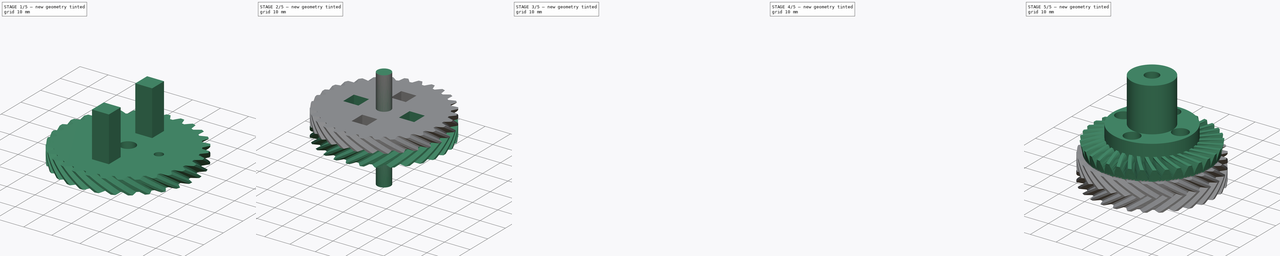
[diagram: build sequence overview — one tinted view per stage of 5, left to right]
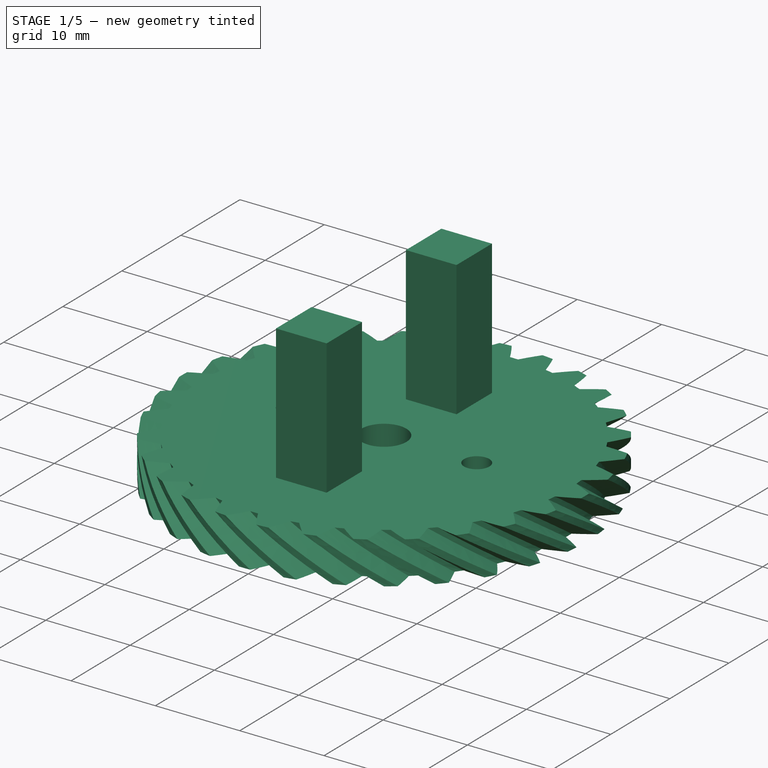
[diagram: stage 1 of 5 — iso view after this stage's code; geometry added in this stage tinted green]
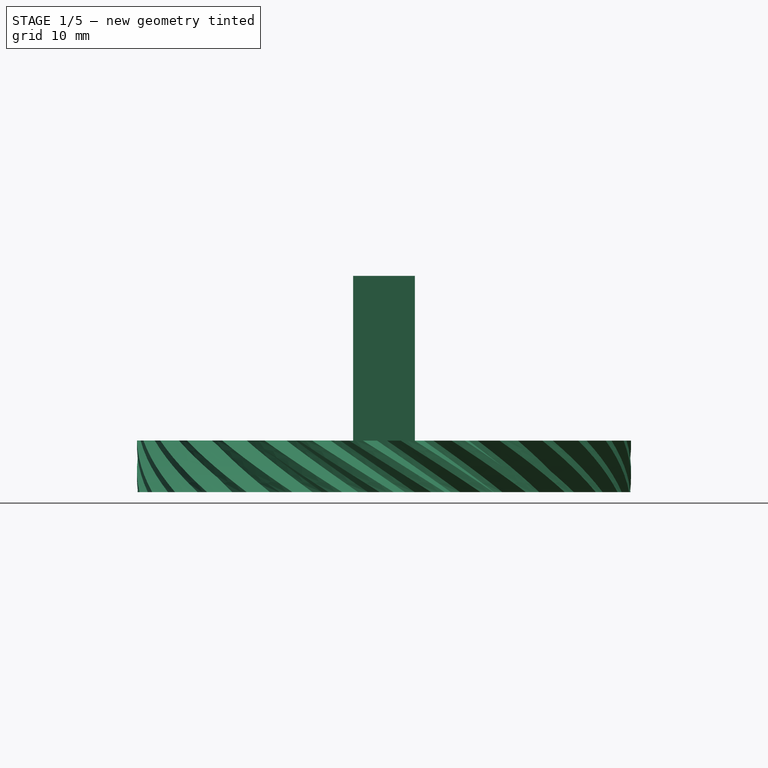
[diagram: stage 1 of 5 — front view after this stage's code; geometry added in this stage tinted green]
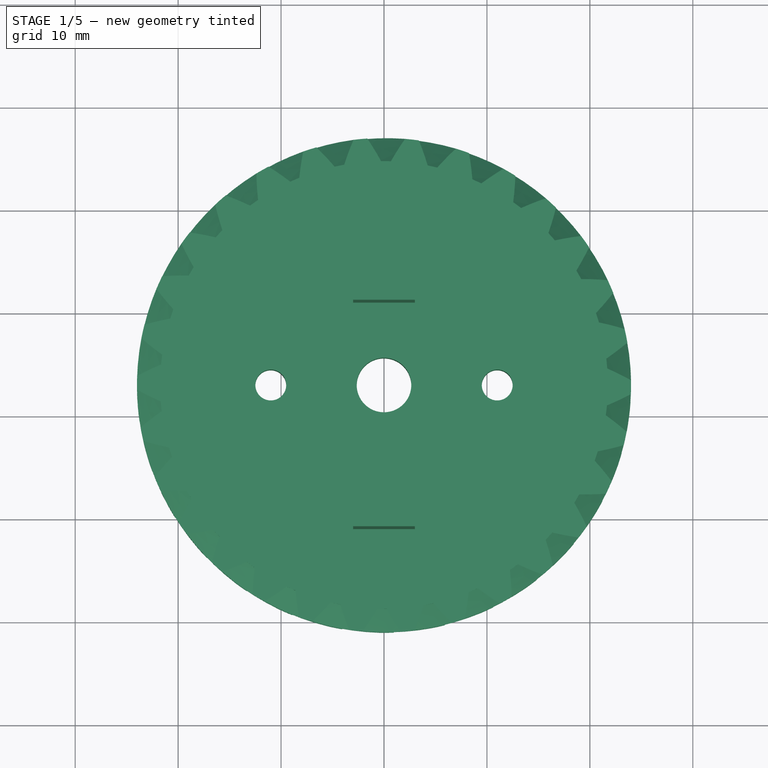
[diagram: stage 1 of 5 — top view after this stage's code; geometry added in this stage tinted green]
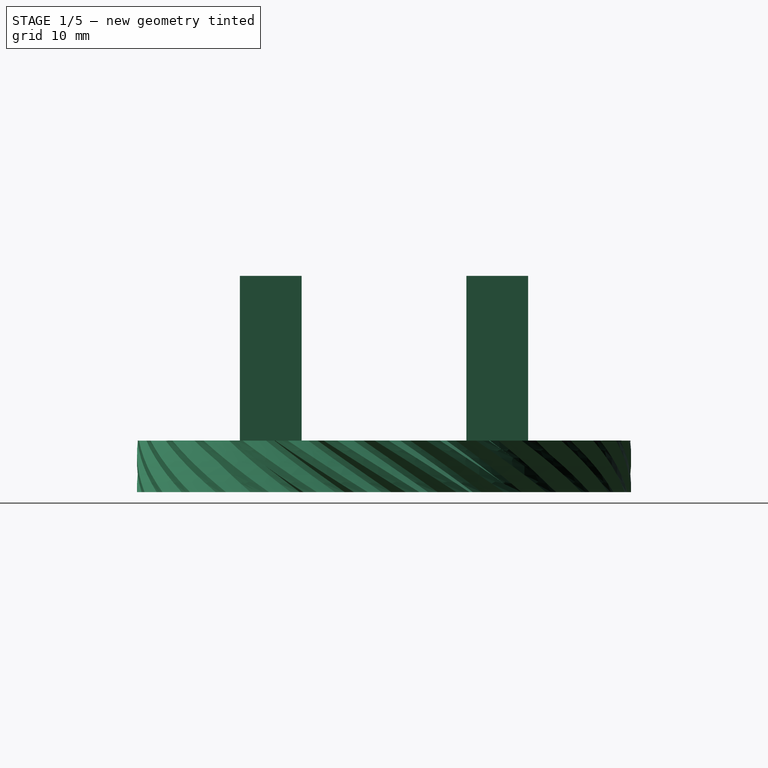
[diagram: stage 1 of 5 — right view after this stage's code; geometry added in this stage tinted green]
FCSTD DOCUMENT  (FreeCAD 0.19R24291 (Git))
Label: bazovina-prevod-A+B_middle-gear_012
License: All rights reserved
LicenseURL: http://en.wikipedia.org/wiki/All_rights_reserved
objects: Part::Cylinder×28, Part::Cut×12, Part::Compound×8, Part::Box×4, Part::FeaturePython×3, Sketcher::SketchObject×1, PartDesign::Revolution×1, PartDesign::Body×1, Part::Common×1
note: 60 computed .brp shape members not serialized (recipe doc carries the construction recipe); baked Part::Feature solids carry a one-line shape summary decoded from their .brp

FEATURE [Part::FeaturePython] wormgear026  # WARN: FeaturePython — macro-defined, semantics opaque (R4)
  AttacherType = Attacher::AttachEngine3D
  Placement = pos=(0,83,37) rot=(0,0,1;0.191986rad)
  beta = 33.1113
  clearance = 0.25
  diameter = 46
  head = 0
  height = 5
  module = 1
  pressure_angle = 20
  reverse_pitch = true
  teeth = 30
  version = 0.0.3
FEATURE [Part::Cylinder] Cylinder587  label="Válec587"
  Angle = 360
  AttacherType = Attacher::AttachEngine3D
  Height = 30
  Placement = pos=(-11,83,15) rot=(0,0,1;0rad)
  Radius = 1.5
FEATURE [Part::Cylinder] Cylinder588  label="Válec588"
  Angle = 360
  AttacherType = Attacher::AttachEngine3D
  Height = 30
  Placement = pos=(11,83,15) rot=(0,0,1;0rad)
  Radius = 1.5
FEATURE [Part::Cylinder] Cylinder589  label="Válec589"
  Angle = 360
  AttacherType = Attacher::AttachEngine3D
  Height = 30
  Placement = pos=(0,72,15) rot=(0,0,1;0rad)
  Radius = 1.5
FEATURE [Part::Cylinder] Cylinder590  label="Válec590"
  Angle = 360
  AttacherType = Attacher::AttachEngine3D
  Height = 30
  Placement = pos=(0,94,15) rot=(0,0,1;0rad)
  Radius = 1.5
FEATURE [Part::Compound] Compound361
  Links = -> [Cylinder587,Cylinder588,Cylinder589,Cylinder590]
FEATURE [Part::Cylinder] Cylinder596  label="Válec596"
  Angle = 360
  AttacherType = Attacher::AttachEngine3D
  Height = 40
  Placement = pos=(0,83,15) rot=(0,0,1;0rad)
  Radius = 2.65
FEATURE [Part::Cut] Cut
  Base = -> wormgear026
  Tool = -> Compound361
FEATURE [Part::Box] Box002  label="Krychle002"
  AttacherType = Attacher::AttachEngine3D
  Height = 20
  Length = 6
  Placement = pos=(-3,69,38) rot=(0,0,1;0rad)
  Width = 6
FEATURE [Part::Box] Box003  label="Krychle003"
  AttacherType = Attacher::AttachEngine3D
  Height = 20
  Length = 6
  Placement = pos=(-3,91,38) rot=(0,0,1;0rad)
  Width = 6
FEATURE [Part::Cut] Cut228
  Base = -> Cut
  Tool = -> Cylinder596
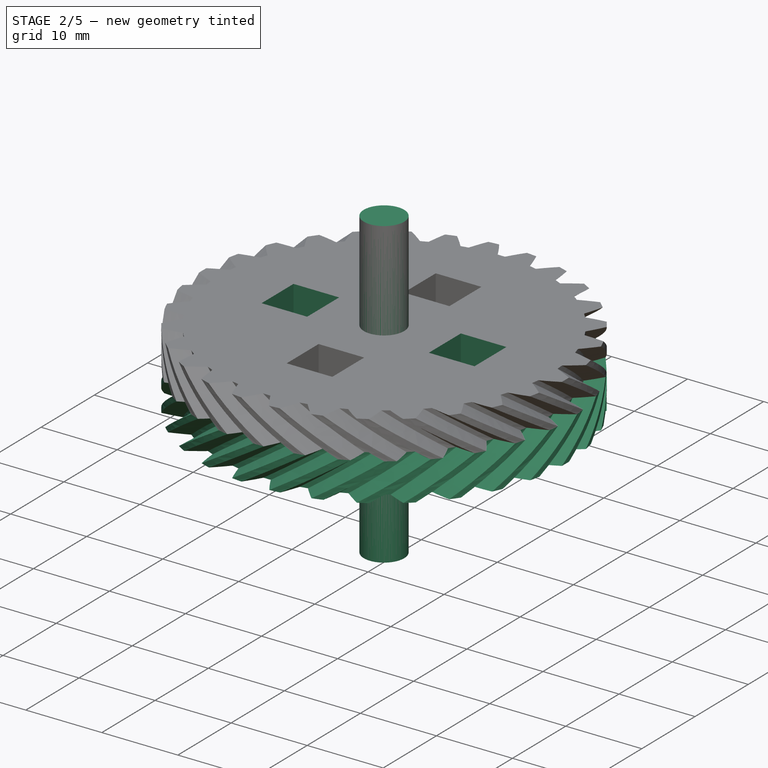
[diagram: stage 2 of 5 — iso view after this stage's code; geometry added in this stage tinted green]
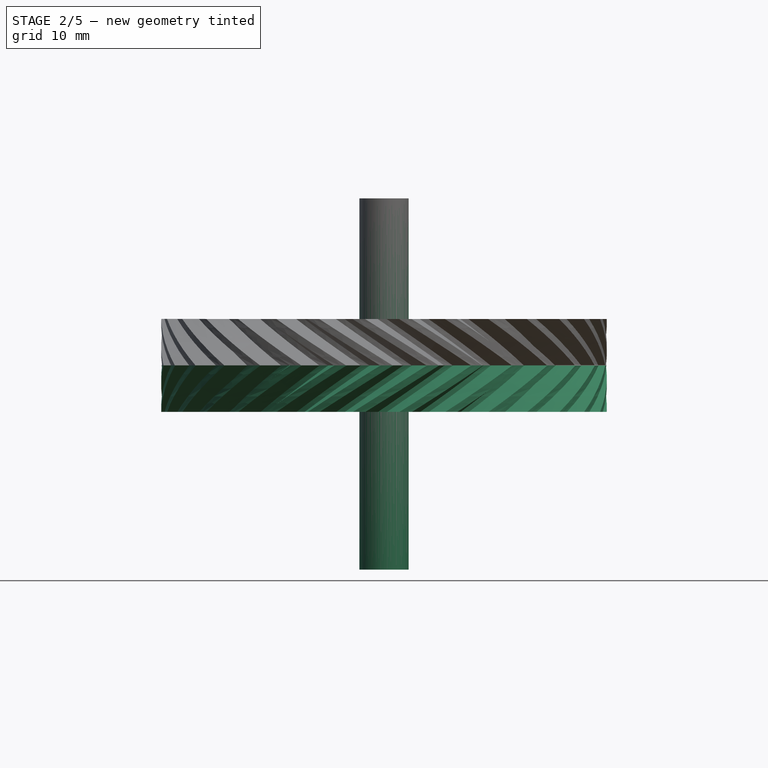
[diagram: stage 2 of 5 — front view after this stage's code; geometry added in this stage tinted green]
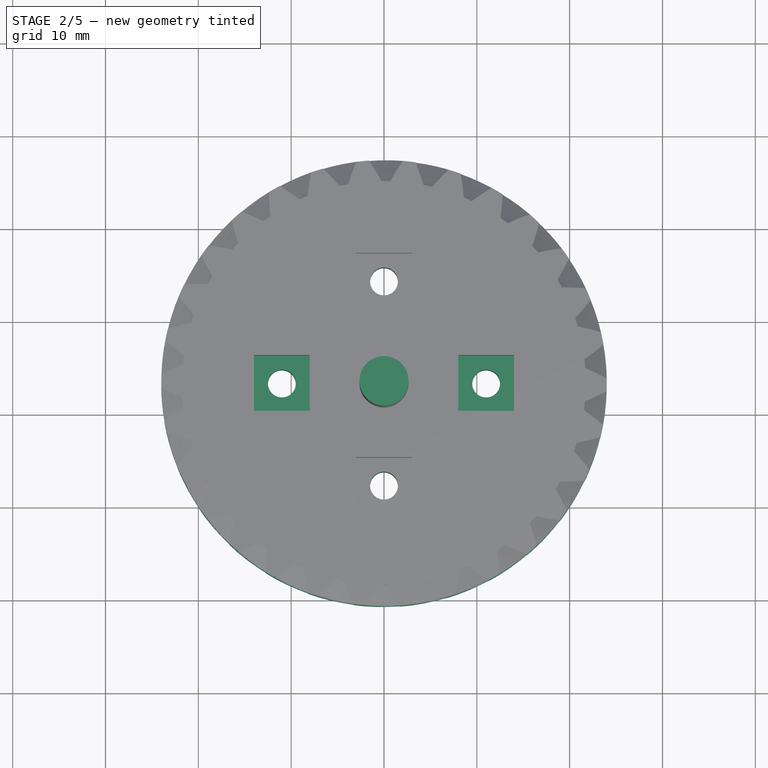
[diagram: stage 2 of 5 — top view after this stage's code; geometry added in this stage tinted green]
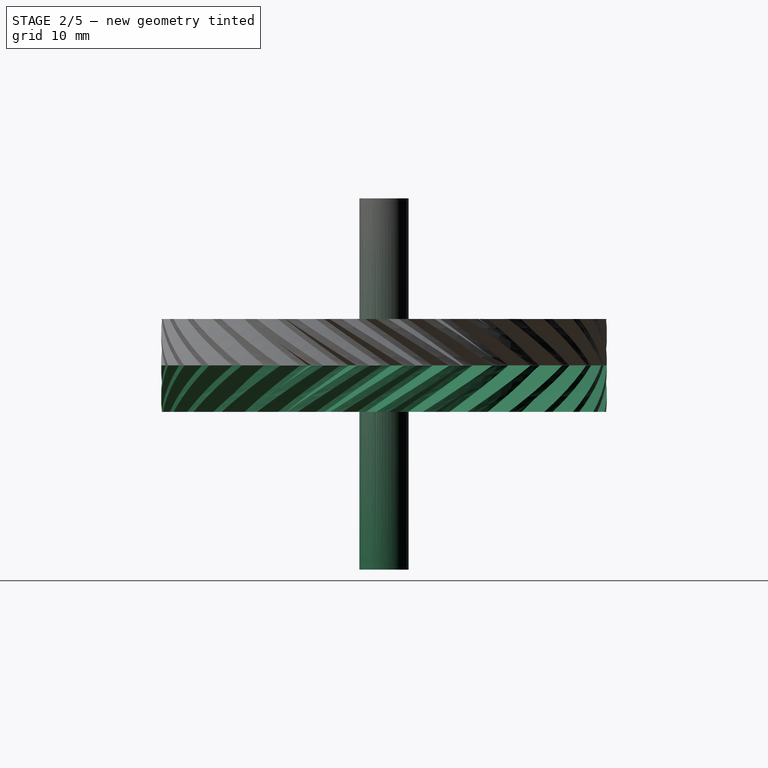
[diagram: stage 2 of 5 — right view after this stage's code; geometry added in this stage tinted green]
FEATURE [Part::FeaturePython] wormgear027  # WARN: FeaturePython — macro-defined, semantics opaque (R4)
  AttacherType = Attacher::AttachEngine3D
  Placement = pos=(0,83,32) rot=(0,0,1;0.069813rad)
  beta = 33.1113
  clearance = 0.25
  diameter = 46
  head = 0
  height = 5
  module = 1
  pressure_angle = 20
  reverse_pitch = false
  teeth = 30
  version = 0.0.3
FEATURE [Part::Cylinder] Cylinder591  label="Válec591"
  Angle = 360
  AttacherType = Attacher::AttachEngine3D
  Height = 40
  Placement = pos=(0,83,15) rot=(0,0,1;0rad)
  Radius = 2.65
FEATURE [Part::Cylinder] Cylinder592  label="Válec592"
  Angle = 360
  AttacherType = Attacher::AttachEngine3D
  Height = 30
  Placement = pos=(-11,83,15) rot=(0,0,1;0rad)
  Radius = 1.5
FEATURE [Part::Cylinder] Cylinder593  label="Válec593"
  Angle = 360
  AttacherType = Attacher::AttachEngine3D
  Height = 30
  Placement = pos=(11,83,15) rot=(0,0,1;0rad)
  Radius = 1.5
FEATURE [Part::Cylinder] Cylinder594  label="Válec594"
  Angle = 360
  AttacherType = Attacher::AttachEngine3D
  Height = 30
  Placement = pos=(0,72,15) rot=(0,0,1;0rad)
  Radius = 1.5
FEATURE [Part::Cylinder] Cylinder595  label="Válec595"
  Angle = 360
  AttacherType = Attacher::AttachEngine3D
  Height = 30
  Placement = pos=(0,94,15) rot=(0,0,1;0rad)
  Radius = 1.5
FEATURE [Part::Compound] Compound
  Links = -> [Cylinder592,Cylinder593,Cylinder594,Cylinder595]
FEATURE [Part::Cut] Cut227
  Base = -> wormgear027
  Tool = -> Compound
FEATURE [Part::Box] Box  label="Krychle"
  AttacherType = Attacher::AttachEngine3D
  Height = 20
  Length = 6
  Placement = pos=(8,80,38) rot=(0,0,1;0rad)
  Width = 6
FEATURE [Part::Box] Box001  label="Krychle001"
  AttacherType = Attacher::AttachEngine3D
  Height = 20
  Length = 6
  Placement = pos=(-14,80,38) rot=(0,0,1;0rad)
  Width = 6
FEATURE [Part::Compound] Compound362
  Links = -> [Box,Box001,Box002,Box003]
FEATURE [Part::Cut] Cut230
  Base = -> Cut228
  Tool = -> Compound362
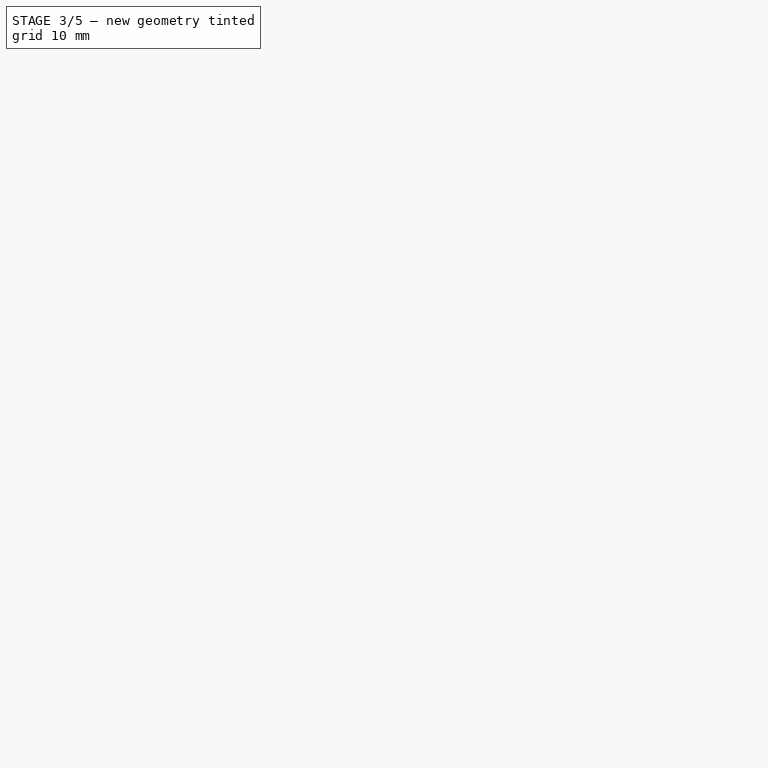
[diagram: stage 3 of 5 — iso view after this stage's code; geometry added in this stage tinted green]
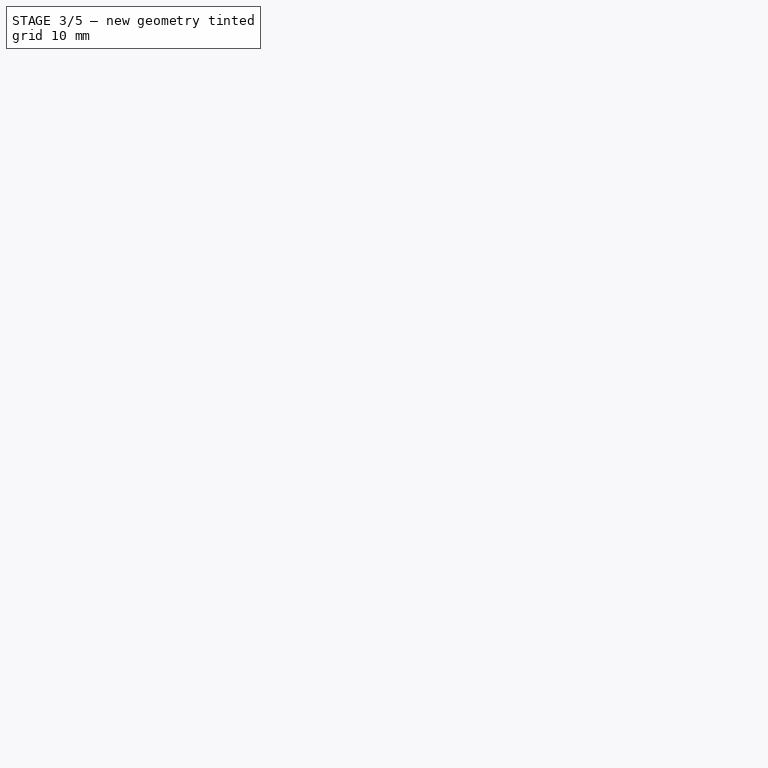
[diagram: stage 3 of 5 — front view after this stage's code; geometry added in this stage tinted green]
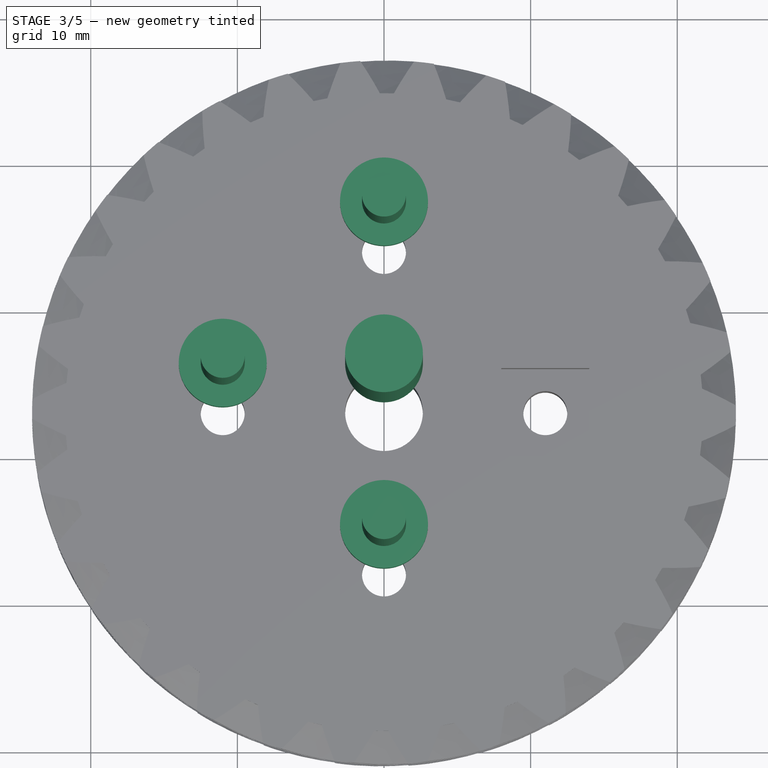
[diagram: stage 3 of 5 — top view after this stage's code; geometry added in this stage tinted green]
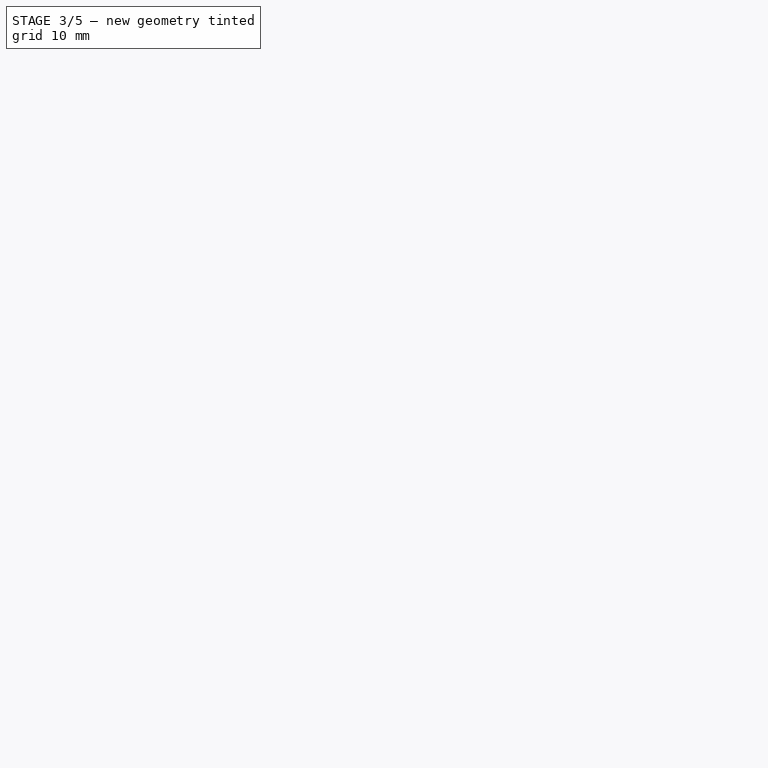
[diagram: stage 3 of 5 — right view after this stage's code; geometry added in this stage tinted green]
FEATURE [Part::Cylinder] Cylinder585  label="Válec585"
  Angle = 360
  AttacherType = Attacher::AttachEngine3D
  Height = 30
  Placement = pos=(-11,83,232) rot=(0,0,1;0rad)
  Radius = 1.5
FEATURE [Part::Cylinder] Cylinder582  label="Válec582"
  Angle = 360
  AttacherType = Attacher::AttachEngine3D
  Height = 3
  Placement = pos=(0,94,232) rot=(0,0,1;0rad)
  Radius = 3
FEATURE [Part::Cylinder] Cylinder583  label="Válec583"
  Angle = 360
  AttacherType = Attacher::AttachEngine3D
  Height = 30
  Placement = pos=(0,94,232) rot=(0,0,1;0rad)
  Radius = 1.5
FEATURE [Part::Cylinder] Cylinder574  label="Válec574"
  Angle = 360
  AttacherType = Attacher::AttachEngine3D
  Height = 30
  Placement = pos=(0,72,232) rot=(0,0,1;0rad)
  Radius = 1.5
FEATURE [Part::Cylinder] Cylinder573  label="Válec573"
  Angle = 360
  AttacherType = Attacher::AttachEngine3D
  Height = 3
  Placement = pos=(0,72,232) rot=(0,0,1;0rad)
  Radius = 3
FEATURE [Part::Cylinder] Cylinder578  label="Válec578"
  Angle = 360
  AttacherType = Attacher::AttachEngine3D
  Height = 3
  Placement = pos=(-11,83,232) rot=(0,0,1;0rad)
  Radius = 3
FEATURE [Part::Cylinder] Cylinder581  label="Válec581"
  Angle = 360
  AttacherType = Attacher::AttachEngine3D
  Height = 40
  Placement = pos=(0,83,232) rot=(0,0,1;0rad)
  Radius = 2.65
FEATURE [Part::Cylinder] Cylinder584  label="Válec584"
  Angle = 360
  AttacherType = Attacher::AttachEngine3D
  Height = 30
  Placement = pos=(0,72,232) rot=(0,0,1;0rad)
  Radius = 1.5
FEATURE [Part::Cylinder] Cylinder586  label="Válec586"
  Angle = 360
  AttacherType = Attacher::AttachEngine3D
  Height = 30
  Placement = pos=(0,83,232) rot=(0,0,1;0rad)
  Radius = 2.65
FEATURE [Part::Cut] Cut229
  Base = -> Cut227
  Tool = -> Cylinder591
FEATURE [Part::Compound] Compound363  label="bazovina-prevod-B"
  Links = -> [Cut229,Cut230]
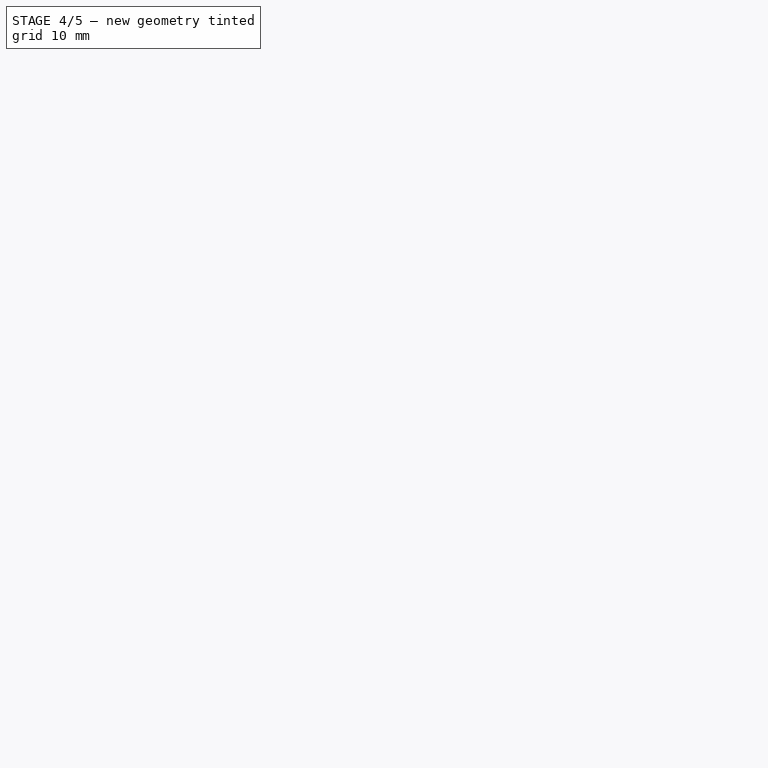
[diagram: stage 4 of 5 — iso view after this stage's code; geometry added in this stage tinted green]
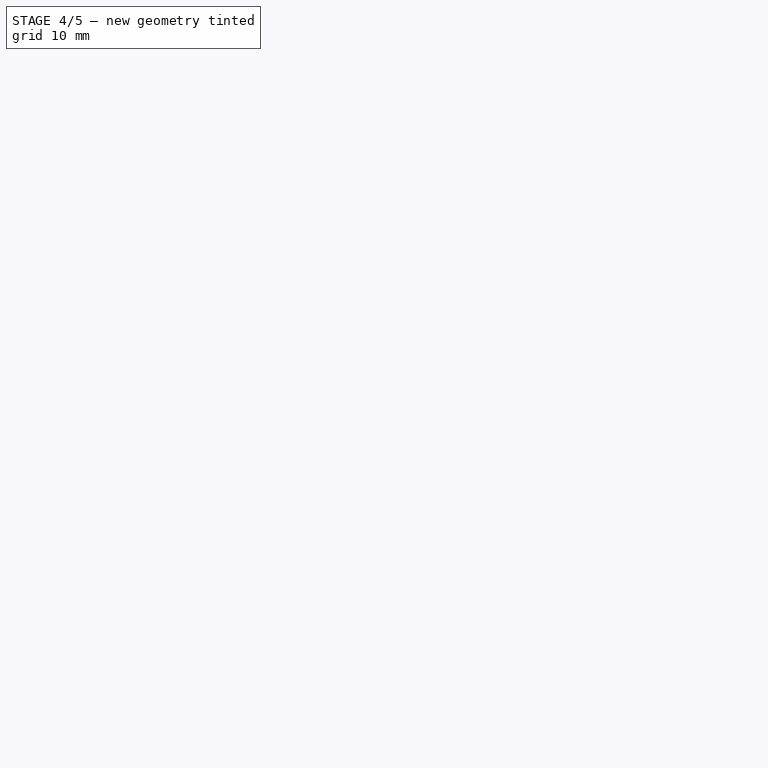
[diagram: stage 4 of 5 — front view after this stage's code; geometry added in this stage tinted green]
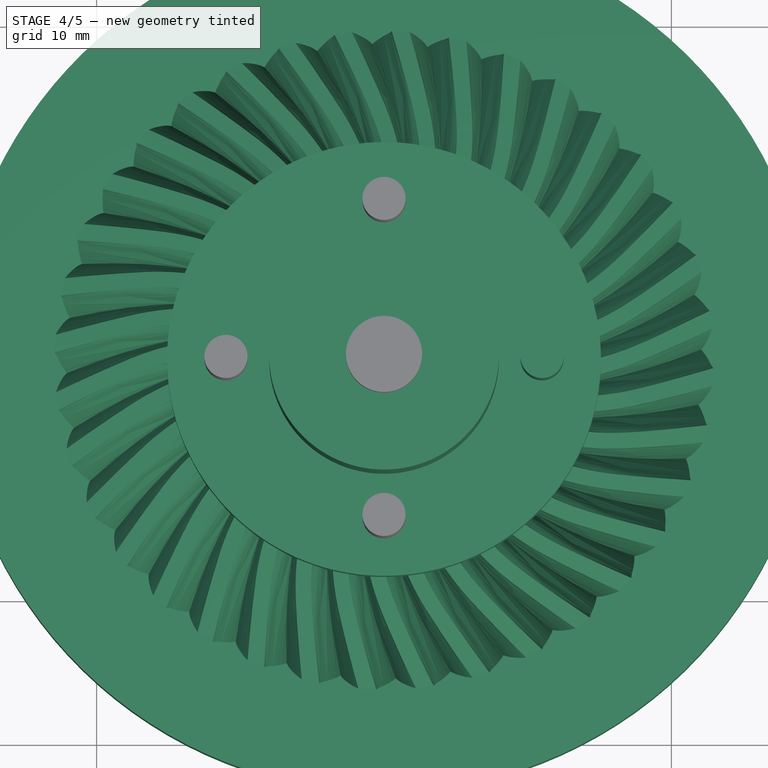
[diagram: stage 4 of 5 — top view after this stage's code; geometry added in this stage tinted green]
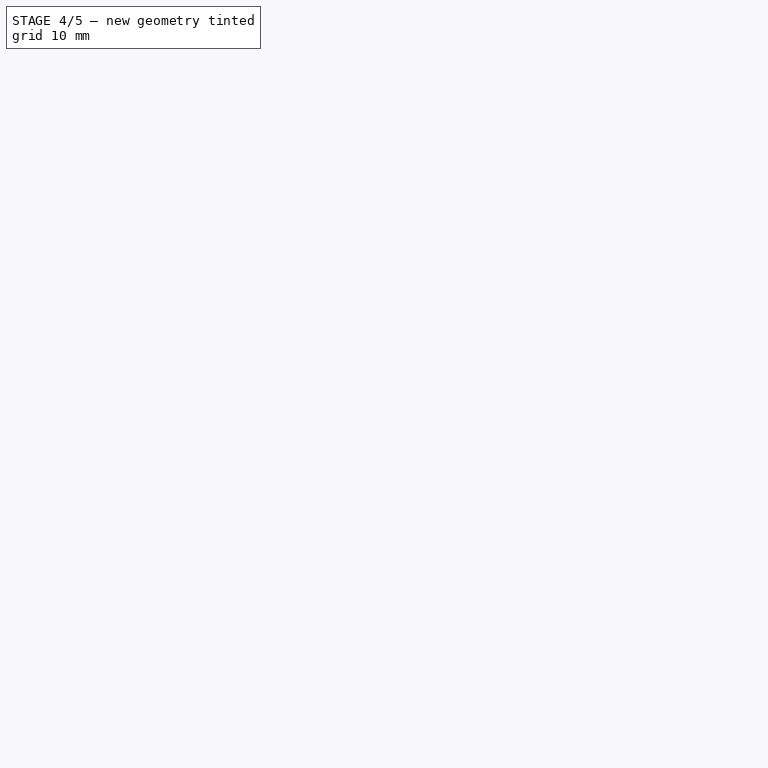
[diagram: stage 4 of 5 — right view after this stage's code; geometry added in this stage tinted green]
FEATURE [Sketcher::SketchObject] Sketch010
  FullyConstrained = false
  MapMode = 5
  Placement = pos=(0,0,0) rot=(1,0,0;1.5708rad)
  Support = -> [XZ_Plane010]
  sketch-geometry (29):
    g0: LineSegment StartX=0 StartY=-63.0008 StartZ=0 EndX=22.5 EndY=-63.0008 EndZ=0
    g1: LineSegment StartX=22.5 StartY=-63.0008 StartZ=0 EndX=22.5 EndY=-67.0008 EndZ=0
    g2: LineSegment StartX=22.5 StartY=-67.0008 StartZ=0 EndX=0 EndY=-67.0008 EndZ=0
    g3: LineSegment StartX=0 StartY=-67.0008 StartZ=0 EndX=0 EndY=-63.0008 EndZ=0
    g4: LineSegment StartX=22.5 StartY=-63.0008 StartZ=0 EndX=26.5 EndY=-63.0008 EndZ=0
    g5: LineSegment StartX=26.5 StartY=-63.0008 StartZ=0 EndX=26.5 EndY=-58.0008 EndZ=0
    g6: LineSegment StartX=26.5 StartY=-58.0008 StartZ=0 EndX=22.5 EndY=-58.0008 EndZ=0
    g7: LineSegment StartX=22.5 StartY=-58.0008 StartZ=0 EndX=22.5 EndY=-63.0008 EndZ=0
    g8: LineSegment StartX=22.5 StartY=-63.0008 StartZ=0 EndX=0 EndY=-63.0008 EndZ=0
    g9: LineSegment StartX=0 StartY=-63.0008 StartZ=0 EndX=0 EndY=-58.0008 EndZ=0
    g10: LineSegment StartX=0 StartY=-58.0008 StartZ=0 EndX=22.5 EndY=-58.0008 EndZ=0
    g11: LineSegment StartX=22.5 StartY=-58.0008 StartZ=0 EndX=22.5 EndY=-63.0008 EndZ=0
    g12: LineSegment StartX=0 StartY=-58.0008 StartZ=0 EndX=22.5 EndY=-63.0008 EndZ=0
    g13: LineSegment StartX=22.5 StartY=-63.0008 StartZ=0 EndX=22.0661 EndY=-64.9532 EndZ=0
    g14: LineSegment StartX=22.5 StartY=-63.0008 StartZ=0 EndX=22.9339 EndY=-61.0485 EndZ=0
    g15: LineSegment StartX=22.9339 StartY=-61.0485 StartZ=0 EndX=0 EndY=-58.0008 EndZ=0
    g16: LineSegment StartX=22.0661 StartY=-64.9532 StartZ=0 EndX=0 EndY=-58.0008 EndZ=0
    g17: LineSegment StartX=22.9339 StartY=-61.0485 StartZ=0 EndX=15.0036 EndY=-59.9946 EndZ=0
    g18: LineSegment StartX=15.0036 StartY=-59.9946 StartZ=0 EndX=14.3355 EndY=-63.0008 EndZ=0
    g19: LineSegment StartX=15.0036 StartY=-58.0008 StartZ=0 EndX=15.0036 EndY=-59.9946 EndZ=0
    g20: LineSegment StartX=22.0661 StartY=-64.9532 StartZ=0 EndX=22.0661 EndY=-67.0008 EndZ=0
    g21: LineSegment StartX=22.9339 StartY=-61.0485 StartZ=0 EndX=26.5 EndY=-61.0485 EndZ=0
    g22: LineSegment StartX=22.0661 StartY=-67.0008 StartZ=0 EndX=22.0661 EndY=-64.9532 EndZ=0
    g23: LineSegment StartX=22.0661 StartY=-64.9532 StartZ=0 EndX=22.9339 EndY=-61.0485 EndZ=0
    g24: LineSegment StartX=22.9339 StartY=-61.0485 StartZ=0 EndX=15.0036 EndY=-59.9946 EndZ=0
    g25: LineSegment StartX=15.0036 StartY=-59.9946 StartZ=0 EndX=14.3355 EndY=-63.0008 EndZ=0
    g26: LineSegment StartX=14.3355 StartY=-63.0008 StartZ=0 EndX=0 EndY=-63.0008 EndZ=0
    g27: LineSegment StartX=0 StartY=-63.0008 StartZ=0 EndX=0 EndY=-67.0008 EndZ=0
    g28: LineSegment StartX=0 StartY=-67.0008 StartZ=0 EndX=22.0661 EndY=-67.0008 EndZ=0
  constraints (77):
    c: Coincident(g0,g1)
    c: Coincident(g1,g2)
    c: Coincident(g2,g3)
    c: Coincident(g3,g0)
    c: Horizontal(g0)
    c: Horizontal(g2)
    c: Vertical(g1)
    c: Vertical(g3)
    c: PointOnObject(g0,g-2)
    c: Distance(g0) = 22.5
    c: Distance(g1) = 4
    c: Coincident(g4,g5)
    c: Coincident(g5,g6)
    c: Coincident(g6,g7)
    c: Coincident(g7,g4)
    c: Horizontal(g4)
    c: Horizontal(g6)
    c: Vertical(g5)
    c: Vertical(g7)
    c: Coincident(g4,g0)
    c: Distance(g7) = 5
    c: Distance(g6) = 4
    c: Coincident(g8,g9)
    c: Coincident(g9,g10)
    c: Coincident(g10,g11)
    c: Coincident(g11,g8)
    c: Horizontal(g8)
    c: Horizontal(g10)
    c: Vertical(g9)
    c: Vertical(g11)
    c: Coincident(g8,g0)
    c: PointOnObject(g9,g-2)
    c: Distance(g9) = 5
    c: Coincident(g12,g9)
    c: Coincident(g12,g0)
    c: Coincident(g13,g0)
    c: Perpendicular(g13,g12)
    c: Distance(g13) = 2
    c: Coincident(g14,g0)
    c: Distance(g14) = 2
    c: Perpendicular(g14,g12)
    c: Coincident(g15,g14)
    c: Coincident(g15,g9)
    c: Coincident(g16,g13)
    c: Coincident(g16,g9)
    c: Coincident(g17,g14)
    c: PointOnObject(g17,g15)
    c: Distance(g17) = 8
    c: Coincident(g18,g17)
    c: PointOnObject(g18,g0)
    c: Perpendicular(g18,g12)
    c: PointOnObject(g19,g10)
    c: Coincident(g19,g17)
    c: Vertical(g19)
    c: Coincident(g20,g13)
    c: PointOnObject(g20,g2)
    c: Vertical(g20)
    c: Coincident(g21,g14)
    c: PointOnObject(g21,g5)
    c: Horizontal(g21)
    c: Angle(g15,g10) = 0.132114
    c: Angle(g12,g10) = 0.218669
    c: Angle(g9,g12) = 1.35213
    c: Coincident(g22,g20)
    c: Coincident(g22,g13)
    c: Coincident(g22,g23)
    c: Coincident(g23,g14)
    c: Coincident(g23,g24)
    c: Coincident(g24,g17)
    c: Coincident(g24,g25)
    c: Coincident(g25,g18)
    c: Coincident(g26,g25)
    c: Coincident(g26,g0)
    c: Coincident(g27,g26)
    c: Coincident(g27,g2)
    c: Coincident(g28,g27)
    c: Coincident(g28,g22)
FEATURE [Part::FeaturePython] bevelgear010  # WARN: FeaturePython — macro-defined, semantics opaque (R4)
  AttacherType = Attacher::AttachEngine3D
  Placement = pos=(0,0,-256) rot=(1,0,0;3.14159rad)
  backlash = 0
  beta = 12
  clearance = 0.1
  height = 16
  module = 0.11
  numpoints = 6
  pitch_angle = 77.47
  pressure_angle = 21
  reset_origin = true
  teeth = 36
  version = 0.0.3
FEATURE [PartDesign::Revolution] Revolution010
  Angle = 360
  Axis = (0,-9e-16,4)
  Base = (0,1.49e-14,-67.0008)
  Placement = pos=(0,0,0) rot=(1,0,0;1.5708rad)
  Profile = -> Sketch010
  ReferenceAxis = -> Sketch010 [Axis3]
  Reversed = true
FEATURE [PartDesign::Body] Body010
  Group = -> [Sketch010,Revolution010]
  Origin = -> Origin010
  Placement = pos=(0,0,-199.6) rot=(0,0,1;0rad)
  Tip = -> Revolution010
FEATURE [Part::Common] Common012
  Base = -> Body010
  Placement = pos=(0,83,507) rot=(0,0,1;0.087266rad)
  Tool = -> bevelgear010
FEATURE [Part::Cylinder] Cylinder571  label="Válec571"
  Angle = 360
  AttacherType = Attacher::AttachEngine3D
  Height = 30
  Placement = pos=(0,83,232) rot=(0,0,1;0rad)
  Radius = 2.65
FEATURE [Part::Cylinder] Cylinder572  label="Válec572"
  Angle = 360
  AttacherType = Attacher::AttachEngine3D
  Height = 30
  Placement = pos=(0,94,232) rot=(0,0,1;0rad)
  Radius = 1.5
FEATURE [Part::Cylinder] Cylinder575  label="Válec575"
  Angle = 360
  AttacherType = Attacher::AttachEngine3D
  Height = 30
  Placement = pos=(-11,83,232) rot=(0,0,1;0rad)
  Radius = 1.5
FEATURE [Part::Cylinder] Cylinder580  label="Válec580"
  Angle = 360
  AttacherType = Attacher::AttachEngine3D
  Height = 30
  Placement = pos=(11,83,232) rot=(0,0,1;0rad)
  Radius = 1.5
FEATURE [Part::Cylinder] Cylinder576  label="Válec576"
  Angle = 360
  AttacherType = Attacher::AttachEngine3D
  Height = 3
  Placement = pos=(11,83,232) rot=(0,0,1;0rad)
  Radius = 3
FEATURE [Part::Cylinder] Cylinder570  label="Válec570"
  Angle = 360
  AttacherType = Attacher::AttachEngine3D
  Height = 30
  Placement = pos=(11,83,232) rot=(0,0,1;0rad)
  Radius = 1.5
FEATURE [Part::Cylinder] Cylinder577  label="Válec577"
  Angle = 360
  AttacherType = Attacher::AttachEngine3D
  Height = 17
  Placement = pos=(0,83,252) rot=(0,0,1;0rad)
  Radius = 8
FEATURE [Part::Cylinder] Cylinder569  label="Válec569"
  Angle = 360
  AttacherType = Attacher::AttachEngine3D
  Height = 10
  Placement = pos=(0,83,242) rot=(0,0,1;0rad)
  Radius = 15.1
FEATURE [Part::Cylinder] Cylinder579  label="Válec579"
  Angle = 360
  AttacherType = Attacher::AttachEngine3D
  Height = 6
  Placement = pos=(0,83,236) rot=(0,0,1;0rad)
  Radius = 30
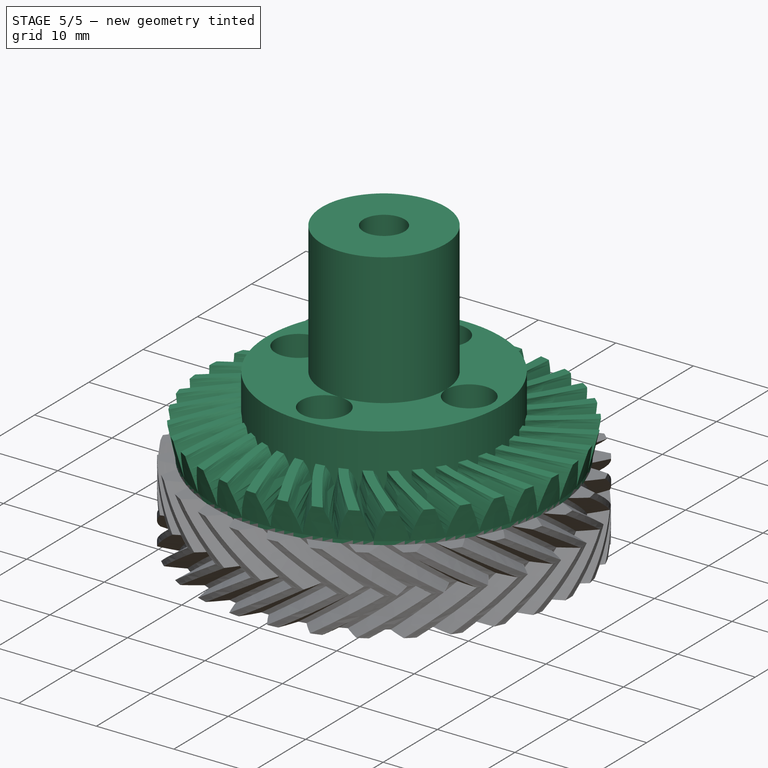
[diagram: stage 5 of 5 — iso view after this stage's code; geometry added in this stage tinted green]
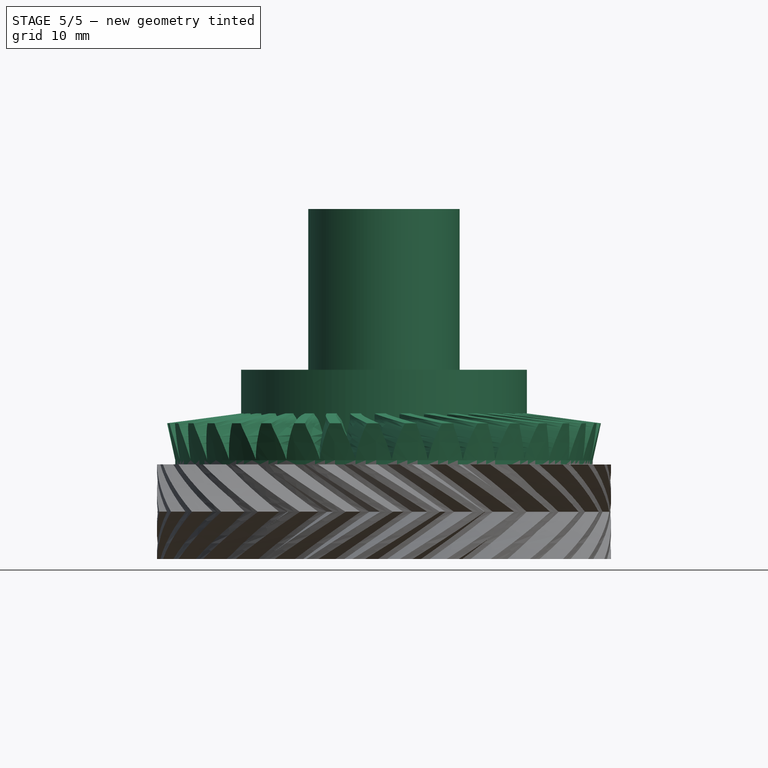
[diagram: stage 5 of 5 — front view after this stage's code; geometry added in this stage tinted green]
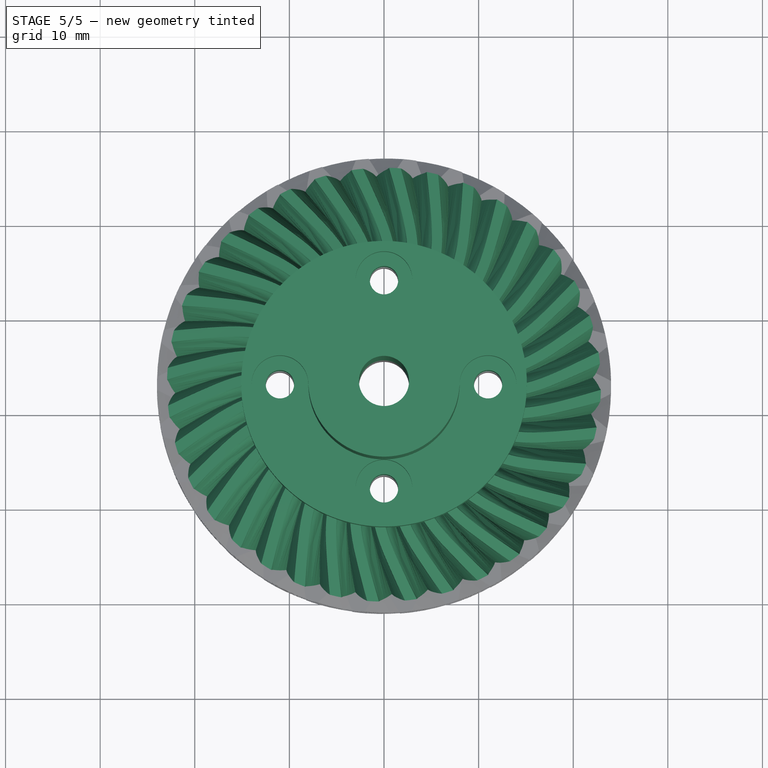
[diagram: stage 5 of 5 — top view after this stage's code; geometry added in this stage tinted green]
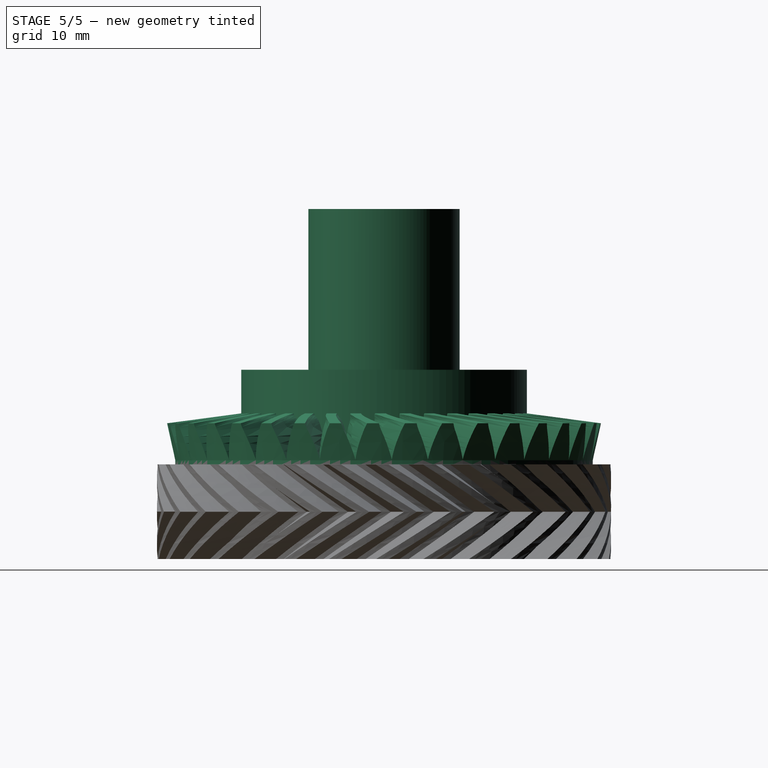
[diagram: stage 5 of 5 — right view after this stage's code; geometry added in this stage tinted green]
FEATURE [Part::Cut] Cut224
  Base = -> Common012
  Tool = -> Cylinder579
FEATURE [Part::Compound] Compound360
  Links = -> [Cylinder575,Cylinder570,Cylinder574,Cylinder572]
FEATURE [Part::Cut] Cut225
  Base = -> Cut224
  Tool = -> Compound360
FEATURE [Part::Cut] Cut222
  Base = -> Cut225
  Tool = -> Cylinder571
FEATURE [Part::Compound] Compound359
  Links = -> [Cylinder578,Cylinder576,Cylinder573,Cylinder582]
  Placement = pos=(0,0,17) rot=(0,0,1;0rad)
FEATURE [Part::Cut] Cut220
  Base = -> Cylinder577
  Tool = -> Cylinder581
FEATURE [Part::Compound] Compound358
  Links = -> [Cylinder585,Cylinder580,Cylinder584,Cylinder583]
FEATURE [Part::Cut] Cut221
  Base = -> Cylinder569
  Tool = -> Compound358
FEATURE [Part::Cut] Cut223
  Base = -> Cut221
  Tool = -> Compound359
FEATURE [Part::Cut] Cut226
  Base = -> Cut223
  Tool = -> Cylinder586
FEATURE [Part::Compound] Compound357  label="bazovina-prevod-A"
  Links = -> [Cut222,Cut226,Cut220]
  Placement = pos=(0,0,-200) rot=(0,0,1;0rad)
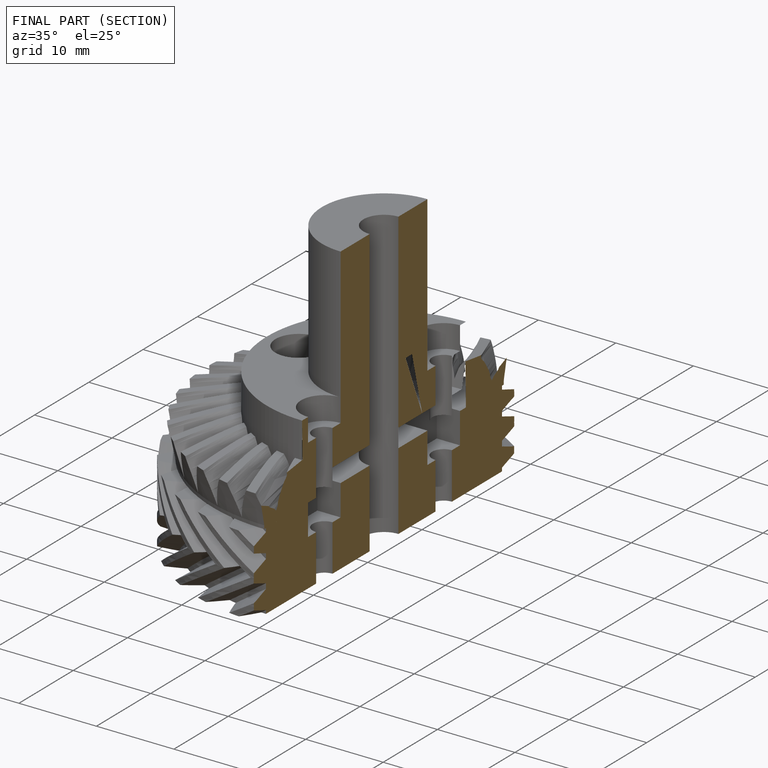
[diagram: finished part — half-section view (interior)]
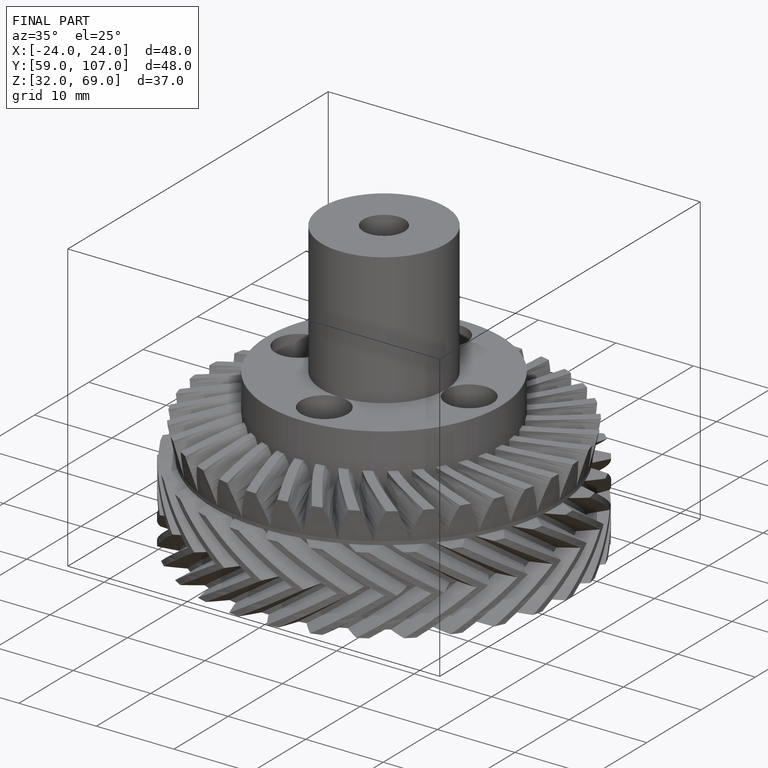
[diagram: finished part — iso view with bounding-box wireframe]
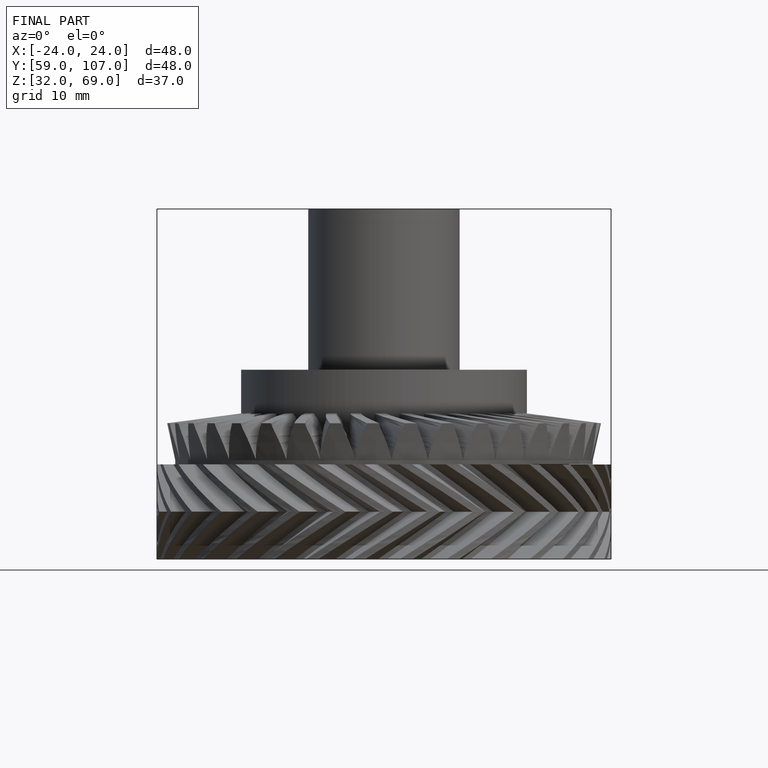
[diagram: finished part — front view with bounding-box wireframe]
